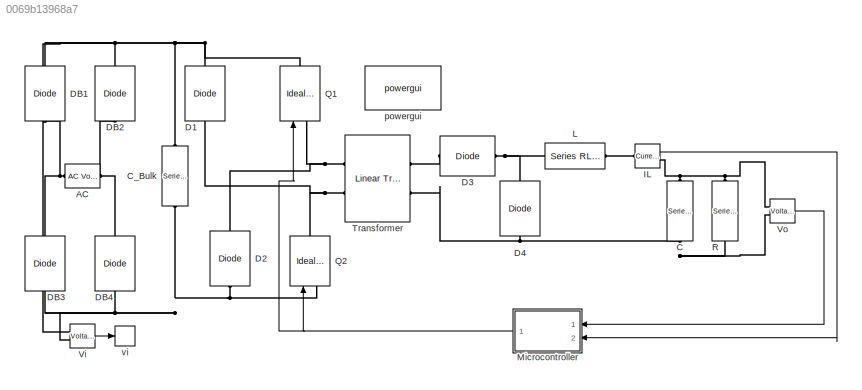
MODEL slx_0069b13968a7
KIND model
CONFIG AbsTol = auto
CONFIG FixedStep = t_step
CONFIG MaxStep = auto
CONFIG MinStep = auto
CONFIG RelTol = 1e-3
CONFIG SampleTimeConstraint = Unconstrained
CONFIG Solver = ode3
CONFIG SolverMode = Auto
CONFIG SolverName = ode3
CONFIG StartTime = 0.0
CONFIG StopTime = tf
BLOCK [Reference] AC  REF=powerlib/Electrical
Sources/AC Voltage Source
  Amplitude = Vp
  Frequency = F_line
  Measurements = None
  Phase = 0
  Ports = [0, 0, 0, 0, 0, 1, 1]
  SampleTime = 0
  SourceBlock = powerlib/Electrical\nSources/AC Voltage Source
  SourceType = AC Voltage Source
BLOCK [Reference] C  REF=powerlib/Elements/Series RLC Branch
  BranchType = RC
  Capacitance = C
  Inductance = 1e-3
  InitialCurrent = 0
  InitialVoltage = 0
  LConnTagsString = __new0
  Measurements = None
  Ports = [0, 0, 0, 0, 0, 1, 1]
  RConnTagsString = __new0
  Resistance = RC
  SetiL0 = off
  Setx0 = off
  SourceBlock = powerlib/Elements/Series RLC Branch
  SourceType = Series RLC Branch
BLOCK [Reference] C_Bulk  REF=powerlib/Elements/Series RLC Branch
  BranchType = RC
  Capacitance = C_bulk
  Inductance = 1e-3
  InitialCurrent = 0
  InitialVoltage = 0
  LConnTagsString = __new0
  Measurements = None
  Ports = [0, 0, 0, 0, 0, 1, 1]
  RConnTagsString = __new0
  Resistance = RC_bulk
  SetiL0 = off
  Setx0 = off
  SourceBlock = powerlib/Elements/Series RLC Branch
  SourceType = Series RLC Branch
BLOCK [Reference] D1  REF=powerlib/Power
Electronics/Diode
  Cs = inf
  IC = 0
  Lon = 0
  Measurements = off
  Ports = [0, 0, 0, 0, 0, 1, 1]
  Ron = Rf
  Rs = 1e8
  SourceBlock = powerlib/Power\nElectronics/Diode
  SourceType = Diode
  UseSnubber = off
  Vf = Vf
BLOCK [Reference] D2  REF=powerlib/Power
Electronics/Diode
  Cs = inf
  IC = 0
  Lon = 0
  Measurements = off
  Ports = [0, 0, 0, 0, 0, 1, 1]
  Ron = Rf
  Rs = 1e8
  SourceBlock = powerlib/Power\nElectronics/Diode
  SourceType = Diode
  UseSnubber = off
  Vf = Vf
BLOCK [Reference] D3  REF=powerlib/Power
Electronics/Diode
  Cs = inf
  IC = 0
  Lon = 0
  Measurements = off
  Ports = [0, 0, 0, 0, 0, 1, 1]
  Ron = Rf
  Rs = 1e8
  SourceBlock = powerlib/Power\nElectronics/Diode
  SourceType = Diode
  UseSnubber = off
  Vf = Vf
BLOCK [Reference] D4  REF=powerlib/Power
Electronics/Diode
  Cs = inf
  IC = 0
  Lon = 0
  Measurements = off
  Ports = [0, 0, 0, 0, 0, 1, 1]
  Ron = Rf
  Rs = 1e8
  SourceBlock = powerlib/Power\nElectronics/Diode
  SourceType = Diode
  UseSnubber = off
  Vf = Vf
BLOCK [Reference] DB1  REF=powerlib/Power
Electronics/Diode
  Cs = inf
  IC = 0
  Lon = 0
  Measurements = off
  Ports = [0, 0, 0, 0, 0, 1, 1]
  Ron = Rf
  Rs = 1e8
  SourceBlock = powerlib/Power\nElectronics/Diode
  SourceType = Diode
  UseSnubber = off
  Vf = Vf
BLOCK [Reference] DB2  REF=powerlib/Power
Electronics/Diode
  Cs = inf
  IC = 0
  Lon = 0
  Measurements = off
  Ports = [0, 0, 0, 0, 0, 1, 1]
  Ron = Rf
  Rs = 1e8
  SourceBlock = powerlib/Power\nElectronics/Diode
  SourceType = Diode
  UseSnubber = off
  Vf = Vf
BLOCK [Reference] DB3  REF=powerlib/Power
Electronics/Diode
  Cs = inf
  IC = 0
  Lon = 0
  Measurements = off
  Ports = [0, 0, 0, 0, 0, 1, 1]
  Ron = Rf
  Rs = 1e8
  SourceBlock = powerlib/Power\nElectronics/Diode
  SourceType = Diode
  UseSnubber = off
  Vf = Vf
BLOCK [Reference] DB4  REF=powerlib/Power
Electronics/Diode
  Cs = inf
  IC = 0
  Lon = 0
  Measurements = off
  Ports = [0, 0, 0, 0, 0, 1, 1]
  Ron = Rf
  Rs = 1e8
  SourceBlock = powerlib/Power\nElectronics/Diode
  SourceType = Diode
  UseSnubber = off
  Vf = Vf
BLOCK [Reference] IL  REF=powerlib/Measurements/Current Measurement
  OutputType = Complex
  PSBequivalent = 0
  PhasorSimulation = off
  Ports = [0, 1, 0, 0, 0, 1, 1]
  SourceBlock = powerlib/Measurements/Current Measurement
  SourceType = Current Measurement
  UserDataPersistent = on
BLOCK [Reference] L  REF=powerlib/Elements/Series RLC Branch
  BranchType = RL
  Capacitance = 1e-3
  Inductance = L
  InitialCurrent = 0
  InitialVoltage = 0
  LConnTagsString = __new0
  Measurements = None
  Ports = [0, 0, 0, 0, 0, 1, 1]
  RConnTagsString = __new0
  Resistance = RL
  SetiL0 = off
  Setx0 = off
  SourceBlock = powerlib/Elements/Series RLC Branch
  SourceType = Series RLC Branch
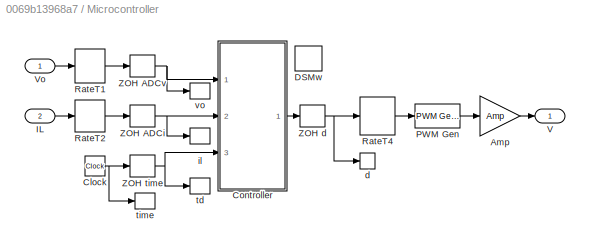
BLOCK [SubSystem] Microcontroller
  Ports = [2, 1]
  RequestExecContextInheritance = off
BLOCK [Gain] Microcontroller/Amp
  Gain = Amp
  OutDataTypeStr = Inherit: Inherit via internal rule
  ParamDataTypeStr = Inherit: Inherit via internal rule
  SaturateOnIntegerOverflow = off
BLOCK [Clock] Microcontroller/Clock
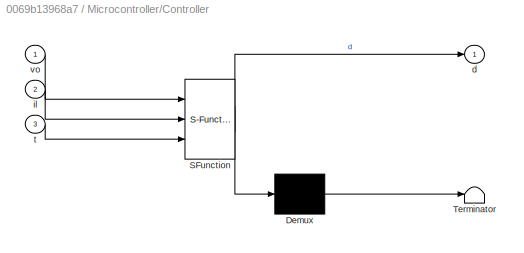
BLOCK [SubSystem] Microcontroller/Controller
  ErrorFcn = Stateflow.Translate.translate
  PermitHierarchicalResolution = ExplicitOnly
  Ports = [3, 1]
  RequestExecContextInheritance = off
  SFBlockType = MATLAB Function
  SystemSampleTime = T_ctrl
  TreatAsAtomicUnit = on
BLOCK [Demux] Microcontroller/Controller/ Demux 
  Outputs = 1
  Ports = [1, 1]
BLOCK [S-Function] Microcontroller/Controller/ SFunction 
  EnableBusSupport = on
  FunctionName = sf_sfun
  Parameters = Dmax,K,RC,r,t_init
  PortCounts = [3 2]
  Ports = [3, 2]
  Tag = Stateflow S-Function TEST 1
BLOCK [Terminator] Microcontroller/Controller/ Terminator 
BLOCK [Outport] Microcontroller/Controller/d
  IconDisplay = Port number
BLOCK [Inport] Microcontroller/Controller/il
  IconDisplay = Port number
  Port = 2
BLOCK [Inport] Microcontroller/Controller/t
  IconDisplay = Port number
  Port = 3
BLOCK [Inport] Microcontroller/Controller/vo
  IconDisplay = Port number
BLOCK [DataStoreMemory] Microcontroller/DSMw
  DataStoreName = w
  OutDataTypeStr = double
  SignalType = real
BLOCK [Inport] Microcontroller/IL
  IconDisplay = Port number
  Port = 2
BLOCK [Reference] Microcontroller/PWM Gen  REF=powerlib_meascontrol/Pulse & Signal
Generators/PWM Generator
(DC-DC)
  Fsw = F_PWM
  Ports = [1, 1]
  SourceBlock = powerlib_meascontrol/Pulse & Signal\nGenerators/PWM Generator\n(DC-DC)
  SourceType = PWM Generator (DC-DC)
  Ts = 0
BLOCK [RateTransition] Microcontroller/RateT1
  OutPortSampleTime = T_ctrl
BLOCK [RateTransition] Microcontroller/RateT2
  OutPortSampleTime = T_ctrl
BLOCK [RateTransition] Microcontroller/RateT4
BLOCK [Outport] Microcontroller/V
  IconDisplay = Port number
BLOCK [Inport] Microcontroller/Vo
  IconDisplay = Port number
BLOCK [ZeroOrderHold] Microcontroller/ZOH ADCi
  SampleTime = T_ctrl
BLOCK [ZeroOrderHold] Microcontroller/ZOH ADCv
  SampleTime = T_ctrl
BLOCK [ZeroOrderHold] Microcontroller/ZOH d
  SampleTime = T_ctrl
BLOCK [ZeroOrderHold] Microcontroller/ZOH time
  SampleTime = T_ctrl
BLOCK [ToWorkspace] Microcontroller/d
  FixptAsFi = on
  MaxDataPoints = inf
  Ports = [1]
  SampleTime = -1
  Save2DSignal = 3-D array (concatenate along third dimension)
  VariableName = d
BLOCK [ToWorkspace] Microcontroller/il
  FixptAsFi = on
  MaxDataPoints = inf
  Ports = [1]
  SampleTime = -1
  Save2DSignal = 3-D array (concatenate along third dimension)
  VariableName = il
BLOCK [ToWorkspace] Microcontroller/td
  FixptAsFi = on
  MaxDataPoints = inf
  Ports = [1]
  SampleTime = -1
  Save2DSignal = 3-D array (concatenate along third dimension)
  VariableName = td
BLOCK [ToWorkspace] Microcontroller/time
  FixptAsFi = on
  MaxDataPoints = inf
  Ports = [1]
  SampleTime = -1
  Save2DSignal = 3-D array (concatenate along third dimension)
  VariableName = t
BLOCK [ToWorkspace] Microcontroller/vo
  FixptAsFi = on
  MaxDataPoints = inf
  Ports = [1]
  SampleTime = -1
  Save2DSignal = 3-D array (concatenate along third dimension)
  VariableName = vo
BLOCK [Reference] Q1  REF=powerlib/Power
Electronics/Ideal Switch
  Cs = inf
  IC = 0
  Lon = 0
  Measurements = off
  Ports = [1, 0, 0, 0, 0, 1, 1]
  Ron = RDS
  Rs = 1e8
  SourceBlock = powerlib/Power\nElectronics/Ideal Switch
  SourceType = Ideal Switch
BLOCK [Reference] Q2  REF=powerlib/Power
Electronics/Ideal Switch
  Cs = inf
  IC = 0
  Lon = 0
  Measurements = off
  Ports = [1, 0, 0, 0, 0, 1, 1]
  Ron = RDS
  Rs = 1e8
  SourceBlock = powerlib/Power\nElectronics/Ideal Switch
  SourceType = Ideal Switch
BLOCK [Reference] R  REF=powerlib/Elements/Series RLC Branch
  BranchType = R
  Capacitance = 1e-3
  Inductance = 1e-3
  InitialCurrent = 0
  InitialVoltage = 0
  LConnTagsString = __new0
  Measurements = None
  Ports = [0, 0, 0, 0, 0, 1, 1]
  RConnTagsString = __new0
  Resistance = R_load
  SetiL0 = off
  Setx0 = off
  SourceBlock = powerlib/Elements/Series RLC Branch
  SourceType = Series RLC Branch
BLOCK [Reference] Transformer  REF=powerlib/Elements/Linear Transformer
  DataType = on
  Measurements = None
  NominalPower = [PT, F_PWM]
  Ports = [0, 0, 0, 0, 0, 2, 2]
  RmLm = [Rm, Lm]
  SourceBlock = powerlib/Elements/Linear Transformer
  SourceType = Linear Transformer
  ThreeWindings = off
  UNITS = SI
  winding1 = [VT1rms, RT1, L_leak]
  winding2 = [VT2rms, RT2, L_leak]
  winding3 = [3.15e+05 0.7938 0.084225]
BLOCK [Reference] Vi  REF=powerlib/Measurements/Voltage Measurement
  OutputType = Complex
  PSBequivalent = 0
  PhasorSimulation = off
  Ports = [0, 1, 0, 0, 0, 2]
  SourceBlock = powerlib/Measurements/Voltage Measurement
  SourceType = Voltage Measurement
  UserDataPersistent = on
BLOCK [Reference] Vo  REF=powerlib/Measurements/Voltage Measurement
  OutputType = Complex
  PSBequivalent = 0
  PhasorSimulation = off
  Ports = [0, 1, 0, 0, 0, 2]
  SourceBlock = powerlib/Measurements/Voltage Measurement
  SourceType = Voltage Measurement
  UserDataPersistent = on
BLOCK [Reference] powergui  REF=powerlib/powergui
  DisableRonSwitches = on
  DisableSnubberDevices = on
  DisableVfSwitches = on
  DisplayEquations = off
  DisplayStyle = 1
  EnableUseOfTLC = off
  ErrMax = 1e-4
  Frange = [0:2:500]
  FreqAxis = off
  FunctionMessages = on
  HookPort = off
  Interpol = off
  Iterations = 50
  MaxFrequency = 1000
  Pbase = 100e6
  Ports = []
  Priority = 1
  ResistiveCurrentMeasurement = off
  RestoreLinks = warning
  RmsSteady = 1
  SPID = on
  SampleTime = t_step
  ShowGrid = off
  SolverType = Backward Euler
  SourceBlock = powerlib/powergui
  SourceType = PSB option menu block
  StartTime = 0.0
  SwTol = 0
  Ts = 100
  UnitsV = V
  UnitsW = W
  UserDataPersistent = on
  Xlog = on
  Ylog = off
  ZoomFFT = off
  buscounter = 0
  cycles = 1
  display = off
  echomessages = off
  frequency = 60
  frequencyindice = 60
  frequencyindicesteady = 1
  fundamental = 60
  methode = off
  save = off
  structure = 0
  variable = ZData
  x0status = zero
BLOCK [ToWorkspace] vi
  FixptAsFi = on
  MaxDataPoints = inf
  Ports = [1]
  SampleTime = -1
  Save2DSignal = 3-D array (concatenate along third dimension)
  VariableName = vi
LINE IL:1 -> Microcontroller:2
LINE Microcontroller/Amp:1 -> Microcontroller/V:1
NET Microcontroller/Clock:1 -> Microcontroller/ZOH time:1, Microcontroller/time:1
LINE Microcontroller/Controller:1 -> Microcontroller/ZOH d:1
LINE Microcontroller/IL:1 -> Microcontroller/RateT2:1
LINE Microcontroller/PWM Gen:1 -> Microcontroller/Amp:1
LINE Microcontroller/RateT1:1 -> Microcontroller/ZOH ADCv:1
LINE Microcontroller/RateT2:1 -> Microcontroller/ZOH ADCi:1
LINE Microcontroller/RateT4:1 -> Microcontroller/PWM Gen:1
LINE Microcontroller/Vo:1 -> Microcontroller/RateT1:1
NET Microcontroller/ZOH ADCi:1 -> Microcontroller/Controller:2, Microcontroller/il:1
NET Microcontroller/ZOH ADCv:1 -> Microcontroller/Controller:1, Microcontroller/vo:1
NET Microcontroller/ZOH d:1 -> Microcontroller/RateT4:1, Microcontroller/d:1
NET Microcontroller/ZOH time:1 -> Microcontroller/Controller:3, Microcontroller/td:1
NET Microcontroller:1 -> Q1:1, Q2:1
LINE Vi:1 -> vi:1
LINE Vo:1 -> Microcontroller:1
PNET net1: AC:LConn1 -- DB1:LConn1 -- DB3:RConn1
PNET net2: AC:RConn1 -- DB2:LConn1 -- DB4:RConn1
PNET net3: C:LConn1 -- IL:RConn1 -- R:LConn1 -- Vo:LConn1
PNET net4: C:RConn1 -- D4:LConn1 -- R:RConn1 -- Transformer:RConn2 -- Vo:LConn2
PNET net5: C_Bulk:LConn1 -- D1:RConn1 -- DB1:RConn1 -- DB2:RConn1 -- Q1:RConn1 -- Vi:LConn1
PNET net6: C_Bulk:RConn1 -- D2:LConn1 -- DB3:LConn1 -- DB4:LConn1 -- Q2:LConn1 -- Vi:LConn2
PNET net7: D1:LConn1 -- Q2:RConn1 -- Transformer:LConn2
PNET net8: D2:RConn1 -- Q1:LConn1 -- Transformer:LConn1
PLINE D3:LConn1 -- Transformer:RConn1
PNET net9: D3:RConn1 -- D4:RConn1 -- L:RConn1
PLINE IL:LConn1 -- L:LConn1
note: NET lines group one-source signal fan-out (src -> all destinations, sorted); 1:1 wires keep LINE; PNET lines group multi-terminal physical nets as a canonical sorted terminal list (undirected conserving connections); 2-terminal nets keep the pairwise PLINE form
CHART Microcontroller/Controller states=1 transitions=1
  STATE_LABEL 'eML_blk_kernel()'
  STATE_LABEL 'SCRIPT:\nfunction d = fcn(vo, il, t, K, r, Dmax, t_init, RC)\nglobal w;\nif t > t_init\n    y = vo;\n    w = w + y - r;\n    vc = vo - RC * il;\n    d = - K * [vc; il; w];\n    if d < 0\n        d = 0;\n    elseif d > Dmax\n        d = Dmax;\n    end\nelse\n    d = 0;\nend\n'
